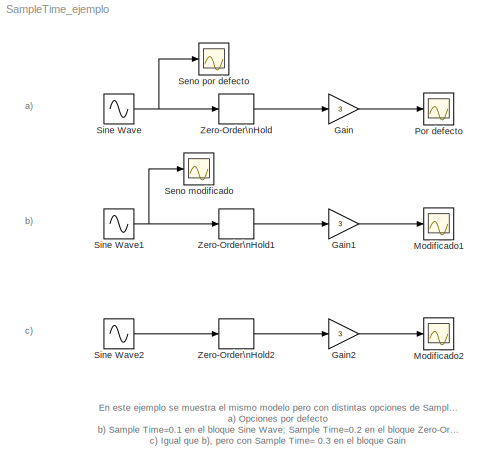
MODEL SampleTime_ejemplo
KIND model
BLOCK [Gain] Gain
  Gain = 3
  OutDataType = sfix(16)
  OutDataTypeMode = Inherit via internal rule
  OutDataTypeStr = Inherit: Inherit via internal rule
  OutScaling = 2^0
  ParamDataTypeStr = Inherit: Inherit via internal rule
  ParameterDataType = sfix(16)
  ParameterDataTypeMode = Inherit via internal rule
  ParameterScaling = 2^0
  SaturateOnIntegerOverflow = off
BLOCK [Gain] Gain1
  Gain = 3
  OutDataType = sfix(16)
  OutDataTypeMode = Inherit via internal rule
  OutDataTypeStr = Inherit: Inherit via internal rule
  OutScaling = 2^0
  ParamDataTypeStr = Inherit: Inherit via internal rule
  ParameterDataType = sfix(16)
  ParameterDataTypeMode = Inherit via internal rule
  ParameterScaling = 2^0
  SaturateOnIntegerOverflow = off
BLOCK [Gain] Gain2
  Gain = 3
  OutDataType = sfix(16)
  OutDataTypeMode = Inherit via internal rule
  OutDataTypeStr = Inherit: Inherit via internal rule
  OutScaling = 2^0
  ParamDataTypeStr = Inherit: Inherit via internal rule
  ParameterDataType = sfix(16)
  ParameterDataTypeMode = Inherit via internal rule
  ParameterScaling = 2^0
  SampleTime = 0.3
  SaturateOnIntegerOverflow = off
BLOCK [Scope] Modificado1
  DataFormat = StructureWithTime
  Floating = off
  NumInputPorts = 1
  Ports = [1]
  SampleTime = 0
  SaveName = ScopeData1
BLOCK [Scope] Modificado2
  DataFormat = StructureWithTime
  Floating = off
  NumInputPorts = 1
  Ports = [1]
  SampleTime = 0
  SaveName = ScopeData4
BLOCK [Scope] Por defecto
  DataFormat = StructureWithTime
  Floating = off
  NumInputPorts = 1
  Ports = [1]
  SampleTime = 0
BLOCK [Scope] Seno modificado
  DataFormat = StructureWithTime
  Floating = off
  NumInputPorts = 1
  Ports = [1]
  SampleTime = 0
  SaveName = ScopeData3
BLOCK [Scope] Seno por defecto
  DataFormat = StructureWithTime
  Floating = off
  NumInputPorts = 1
  Ports = [1]
  SampleTime = 0
  SaveName = ScopeData2
BLOCK [Sin] Sine Wave
  Ports = [0, 1]
  SampleTime = 0
BLOCK [Sin] Sine Wave1
  Ports = [0, 1]
  SampleTime = 0.1
BLOCK [Sin] Sine Wave2
  Ports = [0, 1]
  SampleTime = 0.1
BLOCK [ZeroOrderHold] Zero-Order\nHold
BLOCK [ZeroOrderHold] Zero-Order\nHold1
  SampleTime = 0.2
BLOCK [ZeroOrderHold] Zero-Order\nHold2
  SampleTime = 0.2
ANNOTATION (root): En este ejemplo se muestra el mismo modelo pero con distintas opciones de Sample Time en sus bloques:\na) Opciones por defecto\nb) Sample Time=0.1 en el bloque Sine Wave; Sample Time=0.2 en el bloque Zero-Order Hold\nc) Igual que b), pero con Sample Time= 0.3 en el bloque Gain
ANNOTATION (root): a)
ANNOTATION (root): b)
ANNOTATION (root): c)
LINE Gain1:1 -> Modificado1:1
LINE Gain2:1 -> Modificado2:1
LINE Gain:1 -> Por defecto:1
NET Sine Wave1:1 -> Seno modificado:1, Zero-Order\nHold1:1
LINE Sine Wave2:1 -> Zero-Order\nHold2:1
NET Sine Wave:1 -> Seno por defecto:1, Zero-Order\nHold:1
LINE Zero-Order\nHold1:1 -> Gain1:1
LINE Zero-Order\nHold2:1 -> Gain2:1
LINE Zero-Order\nHold:1 -> Gain:1
note: NET lines group one-source signal fan-out (src -> all destinations, sorted); 1:1 wires keep LINE
